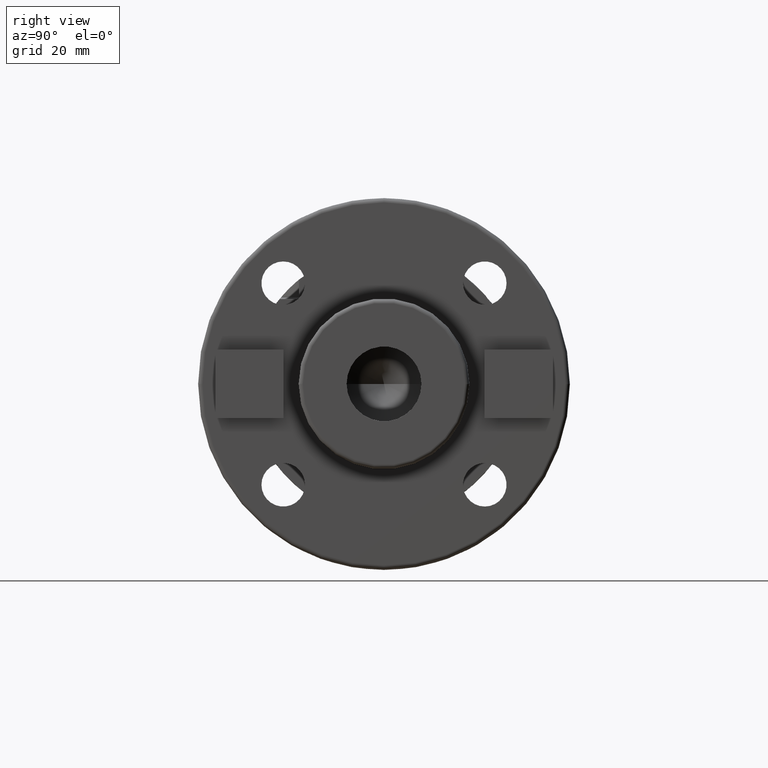
[diagram: clean part render]
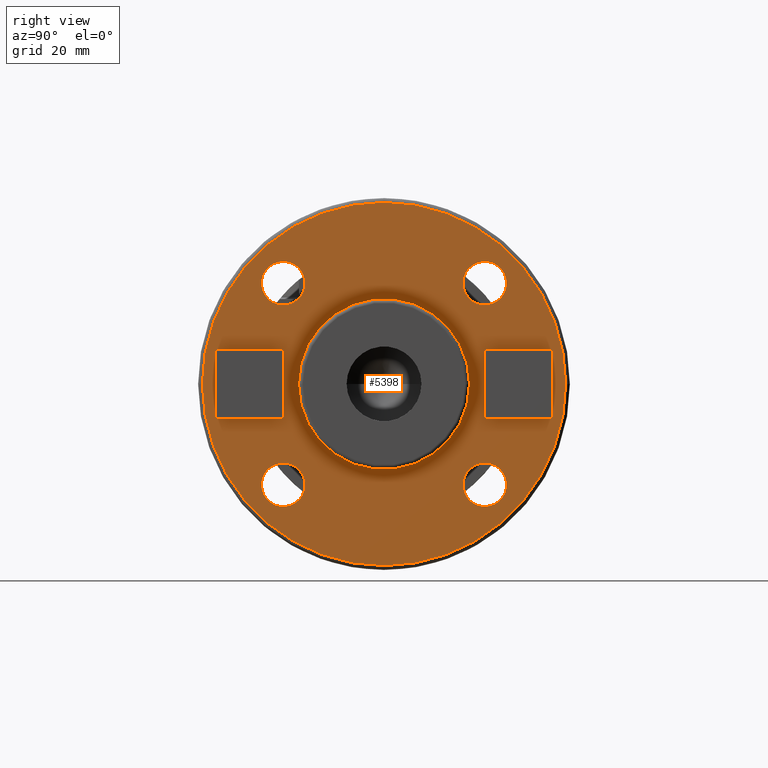
[diagram: same view with one face highlighted and labeled with its STEP entity id]
A machine part, right view. The second image highlights one B-rep face of the part: STEP entity #5398.
In plain terms, the highlighted planar face has unit normal (1, 0, 0).
Its self-contained STEP definition (entity closure, byte-faithful):
#1609=CARTESIAN_POINT('',(6.E1,0.E0,0.E0));
#1610=DIRECTION('',(1.E0,0.E0,0.E0));
#1611=DIRECTION('',(0.E0,1.E0,0.E0));
#1612=AXIS2_PLACEMENT_3D('',#1609,#1610,#1611);
#1614=CARTESIAN_POINT('',(6.E1,0.E0,0.E0));
#1615=DIRECTION('',(-1.E0,0.E0,0.E0));
#1616=DIRECTION('',(0.E0,1.E0,0.E0));
#1617=AXIS2_PLACEMENT_3D('',#1614,#1615,#1616);
#1619=CARTESIAN_POINT('',(6.E1,0.E0,0.E0));
#1620=DIRECTION('',(-1.E0,0.E0,0.E0));
#1621=DIRECTION('',(0.E0,1.E0,0.E0));
#1622=AXIS2_PLACEMENT_3D('',#1619,#1620,#1621);
#1624=CARTESIAN_POINT('',(6.E1,0.E0,0.E0));
#1625=DIRECTION('',(-1.E0,0.E0,0.E0));
#1626=DIRECTION('',(0.E0,-1.E0,0.E0));
#1627=AXIS2_PLACEMENT_3D('',#1624,#1625,#1626);
#1629=DIRECTION('',(0.E0,-1.E0,0.E0));
#1630=VECTOR('',#1629,1.6E1);
#1631=CARTESIAN_POINT('',(6.E1,3.95E1,8.E0));
#1632=LINE('',#1631,#1630);
#1633=DIRECTION('',(0.E0,0.E0,-1.E0));
#1634=VECTOR('',#1633,1.6E1);
#1635=CARTESIAN_POINT('',(6.E1,2.35E1,8.E0));
#1636=LINE('',#1635,#1634);
#1637=DIRECTION('',(0.E0,1.E0,0.E0));
#1638=VECTOR('',#1637,1.6E1);
#1639=CARTESIAN_POINT('',(6.E1,2.35E1,-8.E0));
#1640=LINE('',#1639,#1638);
#1641=DIRECTION('',(0.E0,0.E0,1.E0));
#1642=VECTOR('',#1641,1.6E1);
#1643=CARTESIAN_POINT('',(6.E1,3.95E1,-8.E0));
#1644=LINE('',#1643,#1642);
#1645=DIRECTION('',(0.E0,-1.E0,0.E0));
#1646=VECTOR('',#1645,1.6E1);
#1647=CARTESIAN_POINT('',(6.E1,-2.35E1,8.E0));
#1648=LINE('',#1647,#1646);
#1649=DIRECTION('',(0.E0,0.E0,-1.E0));
#1650=VECTOR('',#1649,1.6E1);
#1651=CARTESIAN_POINT('',(6.E1,-3.95E1,8.E0));
#1652=LINE('',#1651,#1650);
#1653=DIRECTION('',(0.E0,1.E0,0.E0));
#1654=VECTOR('',#1653,1.6E1);
#1655=CARTESIAN_POINT('',(6.E1,-3.95E1,-8.E0));
#1656=LINE('',#1655,#1654);
#1657=DIRECTION('',(0.E0,0.E0,1.E0));
#1658=VECTOR('',#1657,1.6E1);
#1659=CARTESIAN_POINT('',(6.E1,-2.35E1,-8.E0));
#1660=LINE('',#1659,#1658);
#1661=CARTESIAN_POINT('',(6.E1,2.358201115257E1,2.358201115257E1));
#1662=DIRECTION('',(1.E0,0.E0,0.E0));
#1663=DIRECTION('',(0.E0,-1.E0,0.E0));
#1664=AXIS2_PLACEMENT_3D('',#1661,#1662,#1663);
#1666=CARTESIAN_POINT('',(6.E1,2.358201115257E1,2.358201115257E1));
#1667=DIRECTION('',(1.E0,0.E0,0.E0));
#1668=DIRECTION('',(0.E0,1.E0,0.E0));
#1669=AXIS2_PLACEMENT_3D('',#1666,#1667,#1668);
#1671=CARTESIAN_POINT('',(6.E1,-2.358201115257E1,2.358201115257E1));
#1672=DIRECTION('',(1.E0,0.E0,0.E0));
#1673=DIRECTION('',(0.E0,0.E0,-1.E0));
#1674=AXIS2_PLACEMENT_3D('',#1671,#1672,#1673);
#1676=CARTESIAN_POINT('',(6.E1,-2.358201115257E1,2.358201115257E1));
#1677=DIRECTION('',(1.E0,0.E0,0.E0));
#1678=DIRECTION('',(0.E0,0.E0,1.E0));
#1679=AXIS2_PLACEMENT_3D('',#1676,#1677,#1678);
#1681=CARTESIAN_POINT('',(6.E1,-2.358201115257E1,-2.358201115257E1));
#1682=DIRECTION('',(1.E0,0.E0,0.E0));
#1683=DIRECTION('',(0.E0,1.E0,0.E0));
#1684=AXIS2_PLACEMENT_3D('',#1681,#1682,#1683);
#1686=CARTESIAN_POINT('',(6.E1,-2.358201115257E1,-2.358201115257E1));
#1687=DIRECTION('',(1.E0,0.E0,0.E0));
#1688=DIRECTION('',(0.E0,-1.E0,0.E0));
#1689=AXIS2_PLACEMENT_3D('',#1686,#1687,#1688);
#1691=CARTESIAN_POINT('',(6.E1,2.358201115257E1,-2.358201115257E1));
#1692=DIRECTION('',(1.E0,0.E0,0.E0));
#1693=DIRECTION('',(0.E0,0.E0,1.E0));
#1694=AXIS2_PLACEMENT_3D('',#1691,#1692,#1693);
#1696=CARTESIAN_POINT('',(6.E1,2.358201115257E1,-2.358201115257E1));
#1697=DIRECTION('',(1.E0,0.E0,0.E0));
#1698=DIRECTION('',(0.E0,0.E0,-1.E0));
#1699=AXIS2_PLACEMENT_3D('',#1696,#1697,#1698);
#3375=CARTESIAN_POINT('',(6.E1,2.E1,0.E0));
#3376=CARTESIAN_POINT('',(6.E1,-2.E1,0.E0));
#3377=VERTEX_POINT('',#3375);
#3378=VERTEX_POINT('',#3376);
#3383=CARTESIAN_POINT('',(6.E1,4.25E1,0.E0));
#3384=CARTESIAN_POINT('',(6.E1,-4.25E1,-1.040949779275E-14));
#3385=VERTEX_POINT('',#3383);
#3386=VERTEX_POINT('',#3384);
#3411=CARTESIAN_POINT('',(6.E1,3.95E1,8.E0));
#3412=CARTESIAN_POINT('',(6.E1,2.35E1,8.E0));
#3413=VERTEX_POINT('',#3411);
#3414=VERTEX_POINT('',#3412);
#3415=CARTESIAN_POINT('',(6.E1,2.35E1,-8.E0));
#3416=VERTEX_POINT('',#3415);
#3417=CARTESIAN_POINT('',(6.E1,3.95E1,-8.E0));
#3418=VERTEX_POINT('',#3417);
#3419=CARTESIAN_POINT('',(6.E1,-2.35E1,8.E0));
#3420=CARTESIAN_POINT('',(6.E1,-3.95E1,8.E0));
#3421=VERTEX_POINT('',#3419);
#3422=VERTEX_POINT('',#3420);
#3423=CARTESIAN_POINT('',(6.E1,-3.95E1,-8.E0));
#3424=VERTEX_POINT('',#3423);
#3425=CARTESIAN_POINT('',(6.E1,-2.35E1,-8.E0));
#3426=VERTEX_POINT('',#3425);
#3494=CARTESIAN_POINT('',(6.E1,1.848201115257E1,2.358201115257E1));
#3495=CARTESIAN_POINT('',(6.E1,2.868201115257E1,2.358201115257E1));
#3496=VERTEX_POINT('',#3494);
#3497=VERTEX_POINT('',#3495);
#3502=CARTESIAN_POINT('',(6.E1,-2.358201115257E1,1.848201115257E1));
#3503=CARTESIAN_POINT('',(6.E1,-2.358201115257E1,2.868201115257E1));
#3504=VERTEX_POINT('',#3502);
#3505=VERTEX_POINT('',#3503);
#3510=CARTESIAN_POINT('',(6.E1,-1.848201115257E1,-2.358201115257E1));
#3511=CARTESIAN_POINT('',(6.E1,-2.868201115257E1,-2.358201115257E1));
#3512=VERTEX_POINT('',#3510);
#3513=VERTEX_POINT('',#3511);
#3518=CARTESIAN_POINT('',(6.E1,2.358201115257E1,-1.848201115257E1));
#3519=CARTESIAN_POINT('',(6.E1,2.358201115257E1,-2.868201115257E1));
#3520=VERTEX_POINT('',#3518);
#3521=VERTEX_POINT('',#3519);
#5339=CARTESIAN_POINT('',(6.E1,0.E0,0.E0));
#5340=DIRECTION('',(1.E0,0.E0,0.E0));
#5341=DIRECTION('',(0.E0,-1.E0,0.E0));
#5342=AXIS2_PLACEMENT_3D('',#5339,#5340,#5341);
#5343=PLANE('',#5342);
#5344=ORIENTED_EDGE('',*,*,#5333,.T.);
#5345=ORIENTED_EDGE('',*,*,#5319,.T.);
#5346=EDGE_LOOP('',(#5344,#5345));
#5347=FACE_OUTER_BOUND('',#5346,.F.);
#5349=ORIENTED_EDGE('',*,*,#5348,.T.);
#5351=ORIENTED_EDGE('',*,*,#5350,.F.);
#5352=EDGE_LOOP('',(#5349,#5351));
#5353=FACE_BOUND('',#5352,.F.);
#5355=ORIENTED_EDGE('',*,*,#5354,.T.);
#5357=ORIENTED_EDGE('',*,*,#5356,.T.);
#5359=ORIENTED_EDGE('',*,*,#5358,.T.);
#5361=ORIENTED_EDGE('',*,*,#5360,.T.);
#5362=EDGE_LOOP('',(#5355,#5357,#5359,#5361));
#5363=FACE_BOUND('',#5362,.F.);
#5365=ORIENTED_EDGE('',*,*,#5364,.T.);
#5367=ORIENTED_EDGE('',*,*,#5366,.T.);
#5369=ORIENTED_EDGE('',*,*,#5368,.T.);
#5371=ORIENTED_EDGE('',*,*,#5370,.T.);
#5372=EDGE_LOOP('',(#5365,#5367,#5369,#5371));
#5373=FACE_BOUND('',#5372,.F.);
#5375=ORIENTED_EDGE('',*,*,#5374,.T.);
#5377=ORIENTED_EDGE('',*,*,#5376,.T.);
#5378=EDGE_LOOP('',(#5375,#5377));
#5379=FACE_BOUND('',#5378,.F.);
#5381=ORIENTED_EDGE('',*,*,#5380,.T.);
#5383=ORIENTED_EDGE('',*,*,#5382,.T.);
#5384=EDGE_LOOP('',(#5381,#5383));
#5385=FACE_BOUND('',#5384,.F.);
#5387=ORIENTED_EDGE('',*,*,#5386,.T.);
#5389=ORIENTED_EDGE('',*,*,#5388,.T.);
#5390=EDGE_LOOP('',(#5387,#5389));
#5391=FACE_BOUND('',#5390,.F.);
#5393=ORIENTED_EDGE('',*,*,#5392,.T.);
#5395=ORIENTED_EDGE('',*,*,#5394,.T.);
#5396=EDGE_LOOP('',(#5393,#5395));
#5397=FACE_BOUND('',#5396,.F.);
#5398=ADVANCED_FACE('',(#5347,#5353,#5363,#5373,#5379,#5385,#5391,#5397),#5343,
.T.);
#1613=CIRCLE('',#1612,2.E1);
#1618=CIRCLE('',#1617,2.E1);
#1623=CIRCLE('',#1622,4.25E1);
#1628=CIRCLE('',#1627,4.25E1);
#1665=CIRCLE('',#1664,5.1E0);
#1670=CIRCLE('',#1669,5.1E0);
#1675=CIRCLE('',#1674,5.1E0);
#1680=CIRCLE('',#1679,5.1E0);
#1685=CIRCLE('',#1684,5.1E0);
#1690=CIRCLE('',#1689,5.1E0);
#1695=CIRCLE('',#1694,5.1E0);
#1700=CIRCLE('',#1699,5.1E0);
#5319=EDGE_CURVE('',#3386,#3385,#1628,.T.);
#5333=EDGE_CURVE('',#3385,#3386,#1623,.T.);
#5348=EDGE_CURVE('',#3377,#3378,#1613,.T.);
#5350=EDGE_CURVE('',#3377,#3378,#1618,.T.);
#5354=EDGE_CURVE('',#3413,#3414,#1632,.T.);
#5356=EDGE_CURVE('',#3414,#3416,#1636,.T.);
#5358=EDGE_CURVE('',#3416,#3418,#1640,.T.);
#5360=EDGE_CURVE('',#3418,#3413,#1644,.T.);
#5364=EDGE_CURVE('',#3421,#3422,#1648,.T.);
#5366=EDGE_CURVE('',#3422,#3424,#1652,.T.);
#5368=EDGE_CURVE('',#3424,#3426,#1656,.T.);
#5370=EDGE_CURVE('',#3426,#3421,#1660,.T.);
#5374=EDGE_CURVE('',#3496,#3497,#1665,.T.);
#5376=EDGE_CURVE('',#3497,#3496,#1670,.T.);
#5380=EDGE_CURVE('',#3504,#3505,#1675,.T.);
#5382=EDGE_CURVE('',#3505,#3504,#1680,.T.);
#5386=EDGE_CURVE('',#3512,#3513,#1685,.T.);
#5388=EDGE_CURVE('',#3513,#3512,#1690,.T.);
#5392=EDGE_CURVE('',#3520,#3521,#1695,.T.);
#5394=EDGE_CURVE('',#3521,#3520,#1700,.T.);